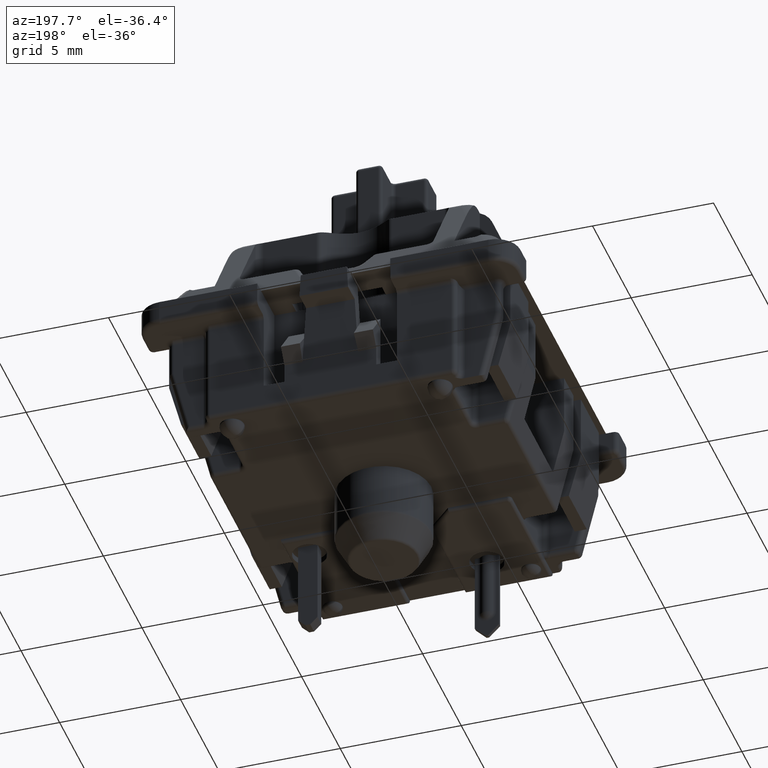
[diagram: clean part render]
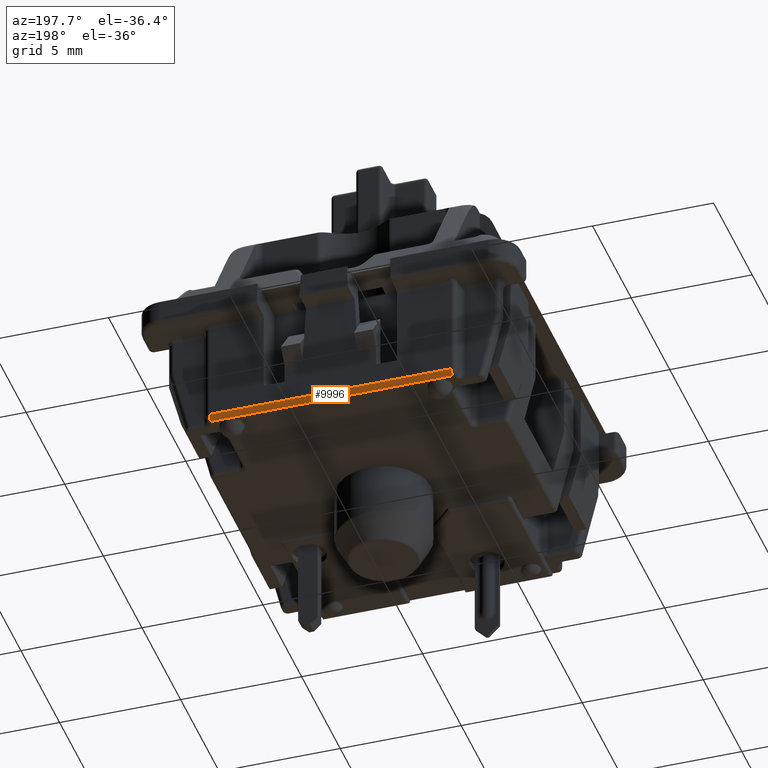
[diagram: same view with one face highlighted and labeled with its STEP entity id]
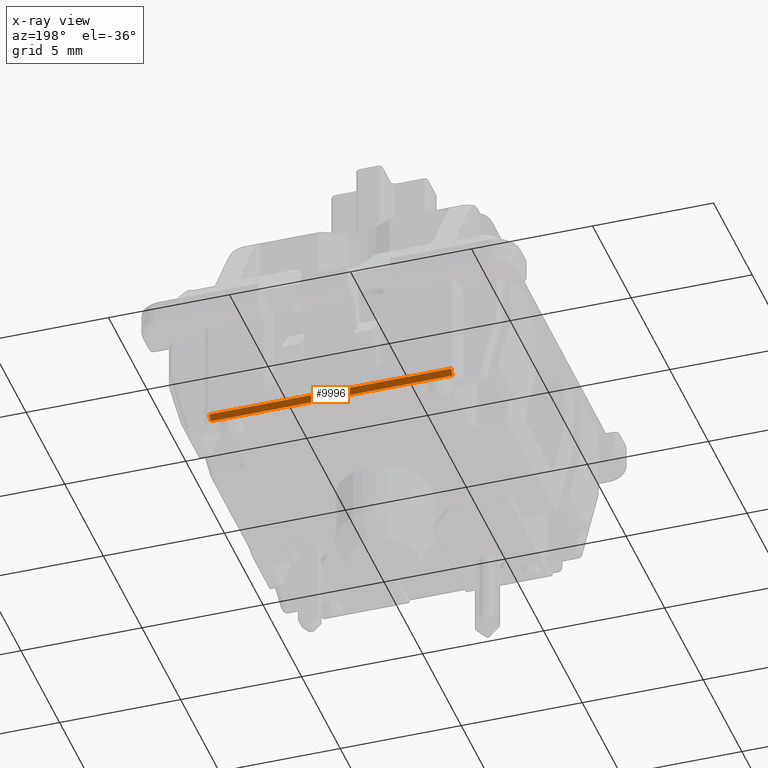
[diagram: x-ray of the same camera — body ghosted, the highlighted face saturated]
A machine part, auxiliary view. The second image highlights one B-rep face of the part: STEP entity #9996.
The next image is the same camera in x-ray: the body ghosted, the highlighted face saturated — about 0% of this face is hidden behind the body in this view.
In plain terms, the highlighted cylindrical surface (edge-blend (fillet) strip) has radius 0.2 mm, axis along (-1, 0, 0).
Its self-contained STEP definition (entity closure, byte-faithful):
#9881=CARTESIAN_POINT('',(-0.196850393700787,0.273622047244095,-0.208661417322835));
#9882=VERTEX_POINT('',#9881);
#9914=CARTESIAN_POINT('',(-0.196850393700787,0.265748031496063,-0.216535433070866));
#9915=VERTEX_POINT('',#9914);
#9916=CARTESIAN_POINT('',(-0.196850393700787,0.265748031496063,-0.208661417322835));
#9917=DIRECTION('',(-1.0,0.0,0.0));
#9918=DIRECTION('',(0.0,0.707106781186547,-0.707106781186547));
#9919=AXIS2_PLACEMENT_3D('',#9916,#9917,#9918);
#9920=CIRCLE('',#9919,0.007874015748031);
#9921=EDGE_CURVE('',#9882,#9915,#9920,.T.);
#9965=CARTESIAN_POINT('',(0.216535433070866,0.265748031496063,-0.208661417322835));
#9966=DIRECTION('',(-1.0,0.0,0.0));
#9967=DIRECTION('',(0.0,-0.707106781186549,0.707106781186546));
#9968=AXIS2_PLACEMENT_3D('',#9965,#9966,#9967);
#9969=CYLINDRICAL_SURFACE('',#9968,0.007874015748031);
#9970=ORIENTED_EDGE('',*,*,#9921,.F.);
#9971=CARTESIAN_POINT('',(0.196850393700787,0.273622047244095,-0.208661417322835));
#9972=VERTEX_POINT('',#9971);
#9973=CARTESIAN_POINT('',(-0.196850393700787,0.273622047244095,-0.208661417322835));
#9974=DIRECTION('',(1.0,0.0,0.0));
#9975=VECTOR('',#9974,0.393700787401574);
#9976=LINE('',#9973,#9975);
#9977=EDGE_CURVE('',#9882,#9972,#9976,.T.);
#9978=ORIENTED_EDGE('',*,*,#9977,.T.);
#9979=CARTESIAN_POINT('',(0.196850393700787,0.265748031496063,-0.216535433070866));
#9980=VERTEX_POINT('',#9979);
#9981=CARTESIAN_POINT('',(0.196850393700787,0.265748031496063,-0.208661417322835));
#9982=DIRECTION('',(-1.0,0.0,0.0));
#9983=DIRECTION('',(0.0,1.0,0.0));
#9984=AXIS2_PLACEMENT_3D('',#9981,#9982,#9983);
#9985=CIRCLE('',#9984,0.007874015748031);
#9986=EDGE_CURVE('',#9972,#9980,#9985,.T.);
#9987=ORIENTED_EDGE('',*,*,#9986,.T.);
#9988=CARTESIAN_POINT('',(0.196850393700787,0.265748031496063,-0.216535433070866));
#9989=DIRECTION('',(-1.0,0.0,0.0));
#9990=VECTOR('',#9989,0.393700787401574);
#9991=LINE('',#9988,#9990);
#9992=EDGE_CURVE('',#9980,#9915,#9991,.T.);
#9993=ORIENTED_EDGE('',*,*,#9992,.T.);
#9994=EDGE_LOOP('',(#9970,#9978,#9987,#9993));
#9995=FACE_OUTER_BOUND('',#9994,.T.);
#9996=ADVANCED_FACE('',(#9995),#9969,.T.);